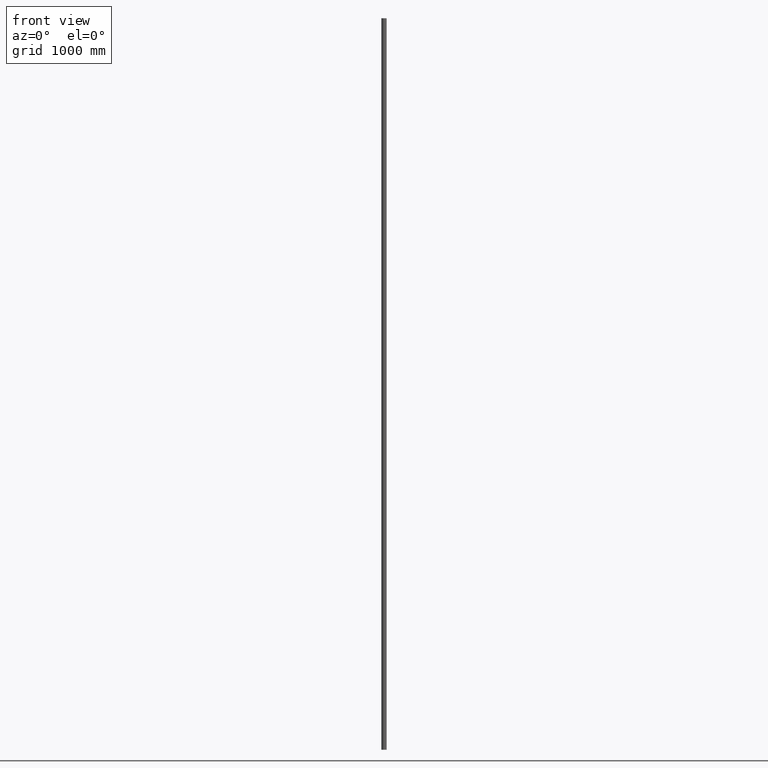
[diagram: clean part render]
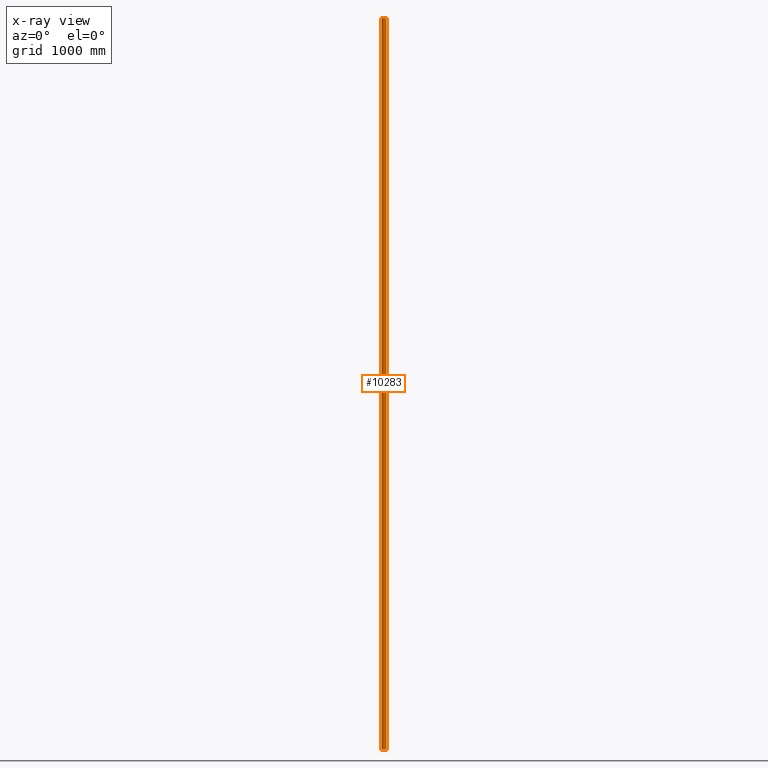
[diagram: x-ray — body ghosted, one internal face saturated and labeled with its STEP entity id]
A machine part, front view, then the same camera in x-ray: the body is ghosted and one INTERNAL B-rep face — a face not visible from any outside direction — is saturated and labeled: STEP entity #10283.
In plain terms, the highlighted cylindrical surface (bore or boss wall) has radius 21.2 mm, axis along (-0, -0, -1).
Its self-contained STEP definition (entity closure, byte-faithful):
#44 = AXIS2_PLACEMENT_3D ( 'NONE', #2397, #11774, #5298 ) ;
#74 = CARTESIAN_POINT ( 'NONE',  ( 0.000000000000000000, 0.000000000000000000, -3000.000000000000000 ) ) ;
#1286 = VERTEX_POINT ( 'NONE', #7169 ) ;
#1579 = EDGE_LOOP ( 'NONE', ( #7954 ) ) ;
#2397 = CARTESIAN_POINT ( 'NONE',  ( 0.000000000000000000, 0.000000000000000000, 3000.000000000000000 ) ) ;
#2580 = DIRECTION ( 'NONE',  ( 1.000000000000000000, 0.000000000000000000, 0.000000000000000000 ) ) ;
#3444 = CYLINDRICAL_SURFACE ( 'NONE', #44, 21.19999999999999929 ) ;
#4180 = EDGE_CURVE ( 'NONE', #1286, #1286, #11011, .T. ) ;
#4933 = AXIS2_PLACEMENT_3D ( 'NONE', #74, #10469, #5779 ) ;
#5298 = DIRECTION ( 'NONE',  ( -1.000000000000000000, 0.000000000000000000, 0.000000000000000000 ) ) ;
#5385 = CARTESIAN_POINT ( 'NONE',  ( 21.19999999999999929, 0.000000000000000000, -3000.000000000000000 ) ) ;
#5552 = CARTESIAN_POINT ( 'NONE',  ( 0.000000000000000000, 0.000000000000000000, 3000.000000000000000 ) ) ;
#5779 = DIRECTION ( 'NONE',  ( 1.000000000000000000, 0.000000000000000000, 0.000000000000000000 ) ) ;
#6226 = ORIENTED_EDGE ( 'NONE', *, *, #4180, .F. ) ;
#6257 = EDGE_CURVE ( 'NONE', #11046, #11046, #7593, .T. ) ;
#7169 = CARTESIAN_POINT ( 'NONE',  ( 21.19999999999999929, 0.000000000000000000, 3000.000000000000000 ) ) ;
#7279 = FACE_OUTER_BOUND ( 'NONE', #1579, .T. ) ;
#7299 = DIRECTION ( 'NONE',  ( 0.000000000000000000, 0.000000000000000000, 1.000000000000000000 ) ) ;
#7593 = CIRCLE ( 'NONE', #4933, 21.19999999999999929 ) ;
#7954 = ORIENTED_EDGE ( 'NONE', *, *, #6257, .T. ) ;
#10283 = ADVANCED_FACE ( 'NONE', ( #10957, #7279 ), #3444, .T. ) ;
#10469 = DIRECTION ( 'NONE',  ( 0.000000000000000000, 0.000000000000000000, 1.000000000000000000 ) ) ;
#10957 = FACE_OUTER_BOUND ( 'NONE', #12006, .T. ) ;
#11011 = CIRCLE ( 'NONE', #11805, 21.19999999999999929 ) ;
#11046 = VERTEX_POINT ( 'NONE', #5385 ) ;
#11774 = DIRECTION ( 'NONE',  ( -0.000000000000000000, -0.000000000000000000, -1.000000000000000000 ) ) ;
#11805 = AXIS2_PLACEMENT_3D ( 'NONE', #5552, #7299, #2580 ) ;
#12006 = EDGE_LOOP ( 'NONE', ( #6226 ) ) ;